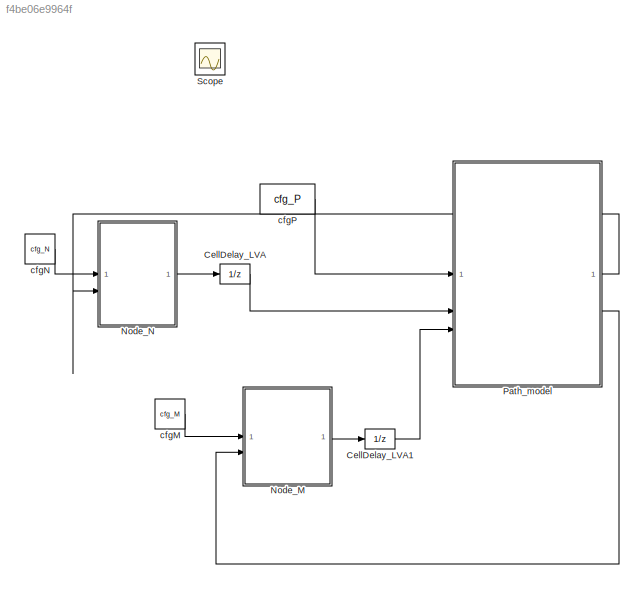
MODEL slx_f4be06e9964f
KIND model
CONFIG AbsTol = auto
CONFIG EnableMultiTasking = off
CONFIG FixedStep = 0.5e-3
CONFIG MaxStep = auto
CONFIG MinStep = auto
CONFIG RelTol = 1e-3
CONFIG SampleTimeConstraint = Unconstrained
CONFIG SolverName = ode1
CONFIG StartTime = 0.0
CONFIG StopTime = 10.0
WORKSPACE source: mxarray member
WORKSPACE cfg_M: object (value not decoded)
WORKSPACE cfg_N: object (value not decoded)
WORKSPACE cfg_P: object (value not decoded)
WORKSPACE l = 1
BLOCK [UnitDelay] CellDelay_LVA
  HasFrameUpgradeWarning = on
  SampleTime = -1
BLOCK [UnitDelay] CellDelay_LVA1
  HasFrameUpgradeWarning = on
  SampleTime = -1
BLOCK [ModelReference] Node_M
  ModelNameDialog = Node_M
  ModelReferenceVersion = 1.87
BLOCK [ModelReference] Node_N
  ModelNameDialog = Node_N
  ModelReferenceVersion = 1.106
BLOCK [ModelReference] Path_model
  ModelNameDialog = Path_model.slx
  ModelReferenceVersion = 1.87
  ParameterArgumentNames = l
  UsingDefaultArgumentValue = 0
BLOCK [Scope] Scope
  Floating = off
  IOType = viewer
  NumInputPorts = 1
  ScopeSpecificationString = Simulink.scopes.TimeScopeBlockCfg('CurrentConfiguration', extmgr.ConfigurationSet(extmgr.Configuration('Core','General UI',true),extmgr.Configuration('Core','Source UI',true),extmgr.Configuration('Sources','WiredSimulink',true),extmgr.Configuration('Visuals','Time Domain',true,'SerializedDisplays',{struct('MinYLimReal','-36.71055','MaxYLimReal','84.65459','YLabelReal','','MinYLimMag','0.00000','Ma...<+3126ch>
BLOCK [Constant] cfgM
  OutDataTypeStr = Bus: Config_M
  Value = cfg_M
BLOCK [Constant] cfgN
  OutDataTypeStr = Bus: Config_N
  Value = cfg_N
BLOCK [Constant] cfgP
  OutDataTypeStr = Bus: Config_Path
  SampleTime = -1
  Value = cfg_P
LINE CellDelay_LVA1:1 -> Path_model:3
LINE CellDelay_LVA:1 -> Path_model:2
LINE Node_M:1 -> CellDelay_LVA1:1
LINE Node_N:1 -> CellDelay_LVA:1
LINE Path_model:1 -> Node_N:2
LINE Path_model:2 -> Node_M:2
LINE cfgM:1 -> Node_M:1
LINE cfgN:1 -> Node_N:1
LINE cfgP:1 -> Path_model:1
